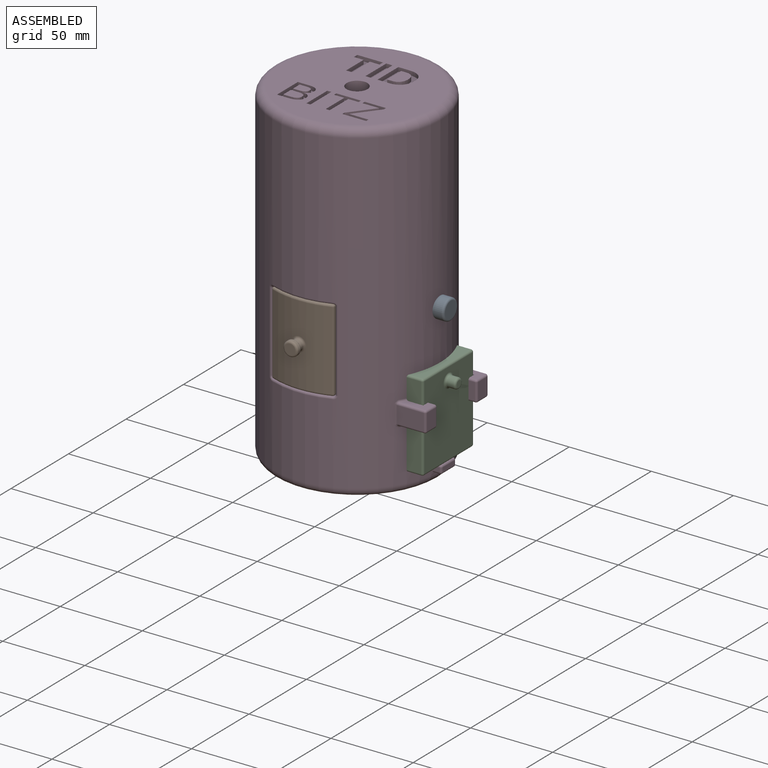
[diagram: assembled view]
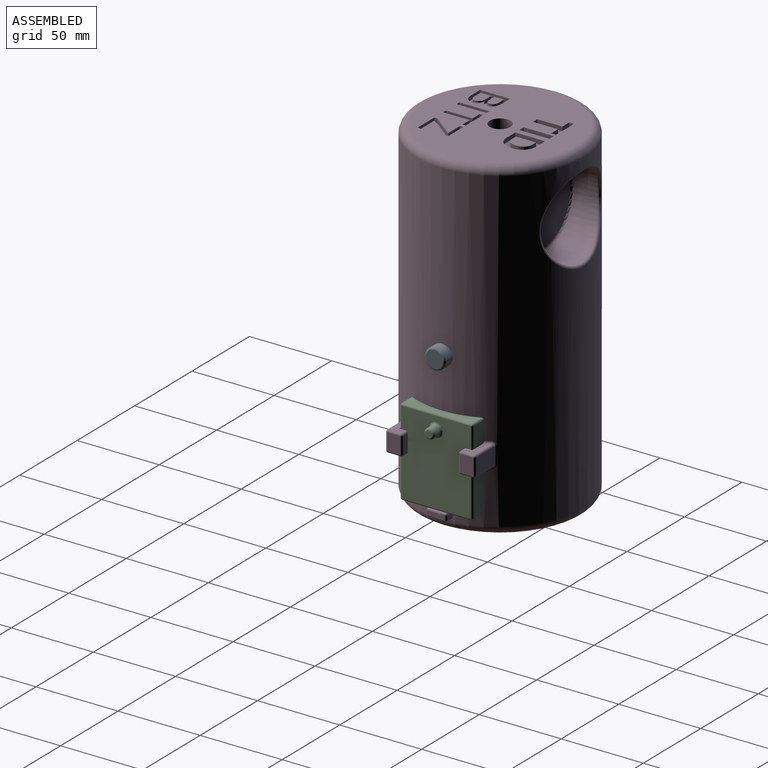
[diagram: assembled view, second angle]
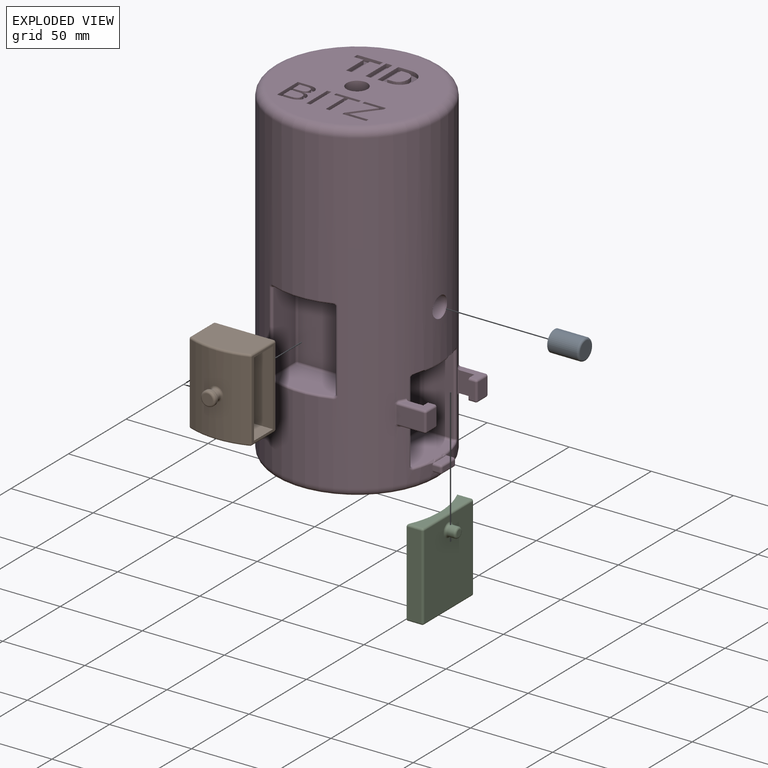
[diagram: exploded view]
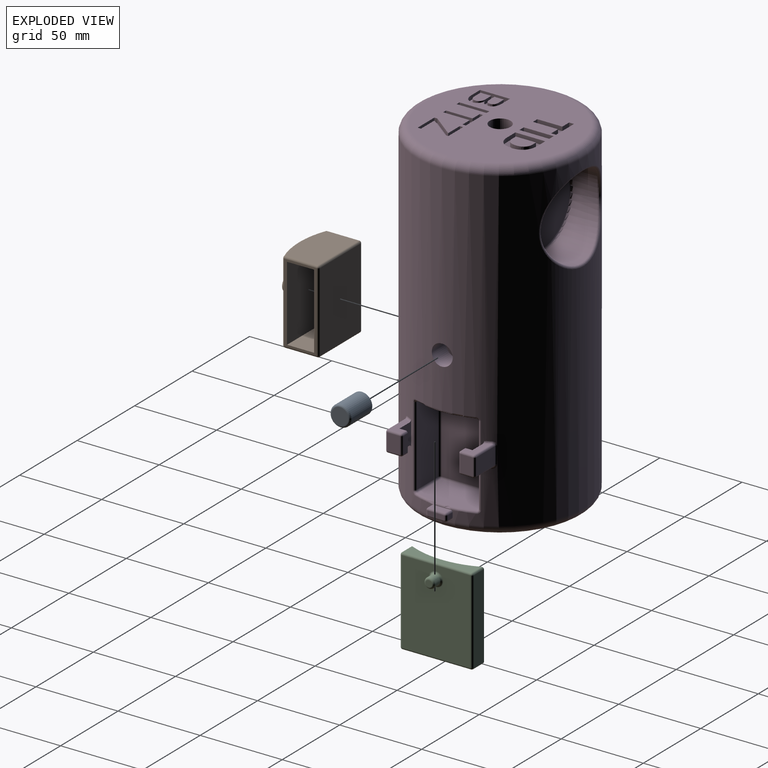
[diagram: exploded view, second angle]
ASSEMBLY  parts=4 mates=3
PART A: 4 faces, bbox 19.1x13.7x13.7 mm
  f0: cylinder r=6.35mm len=17.78mm, axis (-1,0,0), area 709.4mm2, adj f2,f3
  f1: plane 10.16x10.16mm, normal (1,0,0), area 81.1mm2, adj f3
  f2: plane 12.7x12.7mm, normal (-1,0,0), area 126.7mm2, adj f0
  f3: torus R=5.08mm, axis (1,0,0), area 73.8mm2, adj f0,f1
PART B: 37 faces, bbox 39.2x33x50.5 mm
  f0: plane 48.01x19.63mm, normal (1,0,0), area 187.6mm2, adj f18,f19,f27,f28,f32,f33,f34,f35
  f1: cylinder r=50.8mm len=48.01mm, axis (0,0,1), area 1716.8mm2, adj f11,f17,f26,f27,f31
  f2: plane 35.31x22.86mm, normal (0,0,1), area 769.3mm2, adj f12,f16,f17,f18
  f3: plane 35.31x22.86mm, normal (0,0,-1), area 769.3mm2, adj f20,f25,f28,f31
  f4: plane 48.01x19.58mm, normal (-1,0,0), area 940.1mm2, adj f15,f16,f25,f26
  f5: plane 48.01x35.31mm, normal (0,1,0), area 1694.9mm2, adj f12,f15,f19,f20
  f6: cylinder r=3.17mm len=6.35mm, axis (0,1,0), area 52.6mm2, adj f9,f11
  f7: cylinder r=4.45mm len=8.89mm, axis (0,1,0), area 35.5mm2, adj f9,f10
  f8: plane 6.35x6.35mm, normal (0,-1,0), area 31.7mm2, adj f10
  f9: torus R=3.17mm, axis (0,-1,0), area 49.9mm2, adj f6,f7
  f10: torus R=3.17mm, axis (0,-1,0), area 49.9mm2, adj f7,f8
  f11: bspline ~8.9x8.68mm, area 44.1mm2, adj f1,f6
  f12: cylinder r=1.27mm len=35.31mm, axis (-1,0,0), area 70.4mm2, adj f2,f5,f13,f14
  f13: sphere r=1.27mm, area 2.5mm2, adj f12,f15,f16
  f14: sphere r=1.27mm, area 2.5mm2, adj f12,f18,f19
  f15: cylinder r=1.27mm len=48.01mm, axis (0,0,-1), area 95.8mm2, adj f4,f5,f13,f21
  f16: cylinder r=1.27mm len=19.58mm, axis (0,-1,0), area 39.1mm2, adj f2,f4,f13,f22
  f17: torus R=49.53mm, axis (0,0,1), area 73.2mm2, adj f1,f2,f22,f23
  f18: cylinder r=1.27mm len=19.63mm, axis (0,1,0), area 39.2mm2, adj f0,f2,f14,f23
  f19: cylinder r=1.27mm len=48.01mm, axis (0,0,1), area 95.8mm2, adj f0,f5,f14,f24
  f20: cylinder r=1.27mm len=35.31mm, axis (1,0,0), area 70.4mm2, adj f3,f5,f21,f24
  f21: sphere r=1.27mm, area 2.5mm2, adj f15,f20,f25
  f22: sphere r=1.27mm, area 1.9mm2, adj f16,f17,f26
  f23: sphere r=1.27mm, area 1.9mm2, adj f17,f18,f27
  f24: sphere r=1.27mm, area 2.5mm2, adj f19,f20,f28
  f25: cylinder r=1.27mm len=19.58mm, axis (0,1,0), area 39.1mm2, adj f3,f4,f21,f29
  f26: cylinder r=1.27mm len=48.01mm, axis (0,0,1), area 73.5mm2, adj f1,f4,f22,f29
  f27: cylinder r=1.27mm len=48.01mm, axis (0,0,1), area 73.6mm2, adj f0,f1,f23,f30
  f28: cylinder r=1.27mm len=19.63mm, axis (0,-1,0), area 39.2mm2, adj f0,f3,f24,f30
  f29: sphere r=1.27mm, area 1.9mm2, adj f25,f26,f31
  f30: sphere r=1.27mm, area 1.9mm2, adj f27,f28,f31
  f31: torus R=49.53mm, axis (0,0,1), area 73.2mm2, adj f1,f3,f29,f30
  f32: plane 34.29x16.51mm, normal (0,0,-1), area 566.1mm2, adj f0,f33,f35,f36
  f33: plane 45.72x34.29mm, normal (0,1,0), area 1567.7mm2, adj f0,f32,f34,f36
  f34: plane 34.29x16.51mm, normal (0,0,1), area 566.1mm2, adj f0,f33,f35,f36
  f35: plane 45.72x34.29mm, normal (0,-1,0), area 1567.7mm2, adj f0,f32,f34,f36
  f36: plane 45.72x16.51mm, normal (1,0,0), area 754.8mm2, adj f32,f33,f34,f35
PART C: 22 faces, bbox 16.4x44.3x53.3 mm
  f0: plane 50.8x41.78mm, normal (1,0,0), area 2060.5mm2, adj f8,f12,f15,f18,f21
  f1: plane 50.8x8.76mm, normal (0,1,0), area 445.2mm2, adj f2,f16,f17,f21
  f2: cylinder r=50.8mm len=53.34mm, axis (0,0,-1), area 2444.9mm2, adj f1,f3,f4,f5,f10,f11,f16,f17
  f3: plane 50.8x8.76mm, normal (0,-1,0), area 445.2mm2, adj f2,f10,f11,f12
  f4: plane 41.78x8.17mm, normal (0,0,1), area 215mm2, adj f2,f10,f15,f16
  f5: plane 41.78x8.17mm, normal (0,0,-1), area 215mm2, adj f2,f11,f17,f18
  f6: cylinder r=3.17mm len=6.35mm, axis (-1,0,0), area 76mm2, adj f8,f9
  f7: plane 3.81x3.81mm, normal (1,0,0), area 11.4mm2, adj f9
  f8: torus R=4.45mm, axis (1,0,0), area 45.6mm2, adj f0,f6
  f9: torus R=1.91mm, axis (1,0,0), area 34mm2, adj f6,f7
  f10: cylinder r=1.27mm len=8.76mm, axis (-1,0,0), area 17mm2, adj f2,f3,f4,f13
  f11: cylinder r=1.27mm len=8.76mm, axis (1,0,0), area 17mm2, adj f2,f3,f5,f14
  f12: cylinder r=1.27mm len=50.8mm, axis (0,0,1), area 101.3mm2, adj f0,f3,f13,f14
  f13: sphere r=1.27mm, area 2.5mm2, adj f10,f12,f15
  f14: sphere r=1.27mm, area 2.5mm2, adj f11,f12,f18
  f15: cylinder r=1.27mm len=41.78mm, axis (0,-1,0), area 83.4mm2, adj f0,f4,f13,f19
  f16: cylinder r=1.27mm len=8.76mm, axis (1,0,0), area 17mm2, adj f1,f2,f4,f19
  f17: cylinder r=1.27mm len=8.76mm, axis (-1,0,0), area 17mm2, adj f1,f2,f5,f20
  f18: cylinder r=1.27mm len=41.78mm, axis (0,1,0), area 83.4mm2, adj f0,f5,f14,f20
  f19: sphere r=1.27mm, area 2.5mm2, adj f15,f16,f21
  f20: sphere r=1.27mm, area 2.5mm2, adj f17,f18,f21
  f21: cylinder r=1.27mm len=50.8mm, axis (0,0,-1), area 101.3mm2, adj f0,f1,f19,f20
PART D: 234 faces, bbox 115.9x110x203.2 mm
  f0: plane 91.44x91.44mm, normal (0,0,1), area 5566.2mm2, adj f3,f5,f152,f153,f154,f155,f156,f157
  f1: cylinder r=50.8mm len=193.04mm, axis (0,0,-1), area 51991.5mm2, adj f4,f5,f23,f24,f26,f29,f32,f43
  f2: plane 91.44x91.44mm, normal (0,0,-1), area 6440.3mm2, adj f3,f4
  f3: cylinder r=6.35mm len=203.2mm, axis (0,0,-1), area 8107.3mm2, adj f0,f2
  f4: torus R=45.72mm, axis (0,0,1), area 2454.4mm2, adj f1,f2
  f5: torus R=45.72mm, axis (0,0,1), area 2454.4mm2, adj f0,f1
  f6: plane 35.56x22.86mm, normal (0,0,-1), area 774.3mm2, adj f136,f137,f145,f146
  f7: plane 48.26x18.5mm, normal (0,1,0), area 892.8mm2, adj f130,f133,f137,f138
  f8: plane 35.56x22.86mm, normal (0,0,1), area 774.3mm2, adj f133,f134,f143,f144
  f9: plane 48.26x18.5mm, normal (0,-1,0), area 892.8mm2, adj f135,f144,f145,f149
  f10: plane 48.26x35.56mm, normal (1,0,0), area 1716.1mm2, adj f130,f134,f135,f136
  f11: plane 35.56x22.86mm, normal (0,0,-1), area 774.3mm2, adj f116,f117,f125,f126
  f12: plane 48.26x18.5mm, normal (1,0,0), area 892.8mm2, adj f110,f113,f117,f118
  f13: plane 35.56x22.86mm, normal (0,0,1), area 774.3mm2, adj f113,f114,f123,f124
  f14: plane 48.26x18.5mm, normal (-1,0,0), area 892.8mm2, adj f115,f124,f125,f129
  f15: plane 48.26x35.56mm, normal (0,-1,0), area 1716.1mm2, adj f110,f114,f115,f116
  f16: plane 48.26x18.5mm, normal (0,-1,0), area 892.8mm2, adj f98,f103,f106,f109
  f17: plane 35.56x22.86mm, normal (0,0,-1), area 774.3mm2, adj f96,f97,f105,f106
  f18: plane 48.26x18.5mm, normal (0,1,0), area 892.8mm2, adj f90,f94,f95,f96
  f19: plane 35.56x22.86mm, normal (0,0,1), area 774.3mm2, adj f93,f94,f103,f104
  f20: plane 48.26x35.56mm, normal (-1,0,0), area 1716.1mm2, adj f90,f93,f97,f98
  f21: cylinder r=25.4mm len=50.8mm, axis (0,1,0), area 3039.3mm2, adj f88,f89
  f22: plane 48.26x48.26mm, normal (0,1,0), area 1829.2mm2, adj f89
  f23: plane 4.21x2.54mm, normal (0,-1,0), area 10.7mm2, adj f1,f81,f85,f87
  f24: plane 4.21x2.54mm, normal (0,1,0), area 10.7mm2, adj f1,f76,f78,f79
  f25: plane 10.16x4.06mm, normal (0,0,1), area 39.6mm2, adj f78,f84,f87,f143
  f26: plane 10.16x4.06mm, normal (0,0,-1), area 39.6mm2, adj f1,f76,f80,f81
  f27: plane 10.16x2.54mm, normal (1,0,0), area 25.8mm2, adj f79,f80,f84,f85
  f28: plane 16.16x10.16mm, normal (0,-1,0), area 164.2mm2, adj f44,f53,f54,f58
  f29: plane 15.24x10.2mm, normal (0,1,0), area 130.3mm2, adj f1,f30,f31,f39,f43,f45
  f30: plane 14.6x7.62mm, normal (0,0,1), area 66.2mm2, adj f29,f39,f45,f46,f54,f55
  f31: plane 14.6x7.62mm, normal (0,0,-1), area 66.2mm2, adj f29,f39,f42,f43,f52,f53
  f32: plane 15.24x10.2mm, normal (0,-1,0), area 130.3mm2, adj f1,f34,f35,f36,f59,f63
  f33: plane 16.16x10.16mm, normal (0,1,0), area 164.2mm2, adj f64,f69,f72,f75
  f34: plane 14.6x7.62mm, normal (0,0,1), area 66.2mm2, adj f32,f36,f62,f63,f71,f72
  f35: plane 14.6x7.62mm, normal (0,0,-1), area 66.2mm2, adj f32,f36,f59,f60,f69,f70
  f36: plane 12.7x5.08mm, normal (-1,0,0), area 63.8mm2, adj f32,f34,f35,f38,f60,f62
  f37: plane 10.16x7.62mm, normal (1,0,0), area 77.4mm2, adj f61,f70,f71,f75
  f38: plane 10.16x3.81mm, normal (0,-1,0), area 38.7mm2, adj f36,f60,f61,f62
  f39: plane 12.7x5.08mm, normal (-1,0,0), area 63.8mm2, adj f29,f30,f31,f40,f42,f46
  f40: plane 10.16x3.81mm, normal (0,1,0), area 38.7mm2, adj f39,f42,f46,f47
  f41: plane 10.16x7.62mm, normal (1,0,0), area 77.4mm2, adj f47,f52,f55,f58
  f42: cylinder r=1.27mm len=3.81mm, axis (1,0,0), area 7.6mm2, adj f31,f39,f40,f48
  f43: torus R=52.07mm, axis (0,0,1), area 7.7mm2, adj f1,f29,f31,f49
  f44: cylinder r=1.27mm len=10.16mm, axis (0,0,-1), area 12.8mm2, adj f1,f28,f49,f50
  f45: torus R=52.07mm, axis (0,0,1), area 7.7mm2, adj f1,f29,f30,f50
  f46: cylinder r=1.27mm len=3.81mm, axis (-1,0,0), area 7.6mm2, adj f30,f39,f40,f51
  f47: cylinder r=1.27mm len=10.16mm, axis (0,0,1), area 20.3mm2, adj f40,f41,f48,f51
  f48: sphere r=1.27mm, area 2.5mm2, adj f42,f47,f52
  f49: bspline ~3.09x2.99mm, area 5.1mm2, adj f1,f43,f44,f53
  f50: bspline ~3.1x3.03mm, area 5.1mm2, adj f1,f44,f45,f54
  f51: sphere r=1.27mm, area 2.5mm2, adj f46,f47,f55
  f52: cylinder r=1.27mm len=7.62mm, axis (0,-1,0), area 15.2mm2, adj f31,f41,f48,f56
  f53: cylinder r=1.27mm len=16.16mm, axis (-1,0,0), area 31.1mm2, adj f28,f31,f49,f56
  f54: cylinder r=1.27mm len=16.16mm, axis (1,0,0), area 31.1mm2, adj f28,f30,f50,f57
  f55: cylinder r=1.27mm len=7.62mm, axis (0,1,0), area 15.2mm2, adj f30,f41,f51,f57
  f56: sphere r=1.27mm, area 2.5mm2, adj f52,f53,f58
  f57: sphere r=1.27mm, area 2.5mm2, adj f54,f55,f58
  f58: cylinder r=1.27mm len=10.16mm, axis (0,0,1), area 20.3mm2, adj f28,f41,f56,f57
  f59: torus R=52.07mm, axis (0,0,1), area 7.7mm2, adj f1,f32,f35,f65
  f60: cylinder r=1.27mm len=3.81mm, axis (-1,0,0), area 7.6mm2, adj f35,f36,f38,f66
  f61: cylinder r=1.27mm len=10.16mm, axis (0,0,1), area 20.3mm2, adj f37,f38,f66,f67
  f62: cylinder r=1.27mm len=3.81mm, axis (1,0,0), area 7.6mm2, adj f34,f36,f38,f67
  f63: torus R=52.07mm, axis (0,0,1), area 7.7mm2, adj f1,f32,f34,f68
  f64: cylinder r=1.27mm len=10.16mm, axis (0,0,-1), area 12.8mm2, adj f1,f33,f65,f68
  f65: bspline ~3.1x3.03mm, area 5.1mm2, adj f1,f59,f64,f69
  f66: sphere r=1.27mm, area 2.5mm2, adj f60,f61,f70
  f67: sphere r=1.27mm, area 2.5mm2, adj f61,f62,f71
  f68: bspline ~3.09x2.99mm, area 5.1mm2, adj f1,f63,f64,f72
  f69: cylinder r=1.27mm len=16.16mm, axis (1,0,0), area 31.1mm2, adj f33,f35,f65,f73
  f70: cylinder r=1.27mm len=7.62mm, axis (0,-1,0), area 15.2mm2, adj f35,f37,f66,f73
  f71: cylinder r=1.27mm len=7.62mm, axis (0,1,0), area 15.2mm2, adj f34,f37,f67,f74
  f72: cylinder r=1.27mm len=16.16mm, axis (-1,0,0), area 31.1mm2, adj f33,f34,f68,f74
  f73: sphere r=1.27mm, area 2.5mm2, adj f69,f70,f75
  f74: sphere r=1.27mm, area 2.5mm2, adj f71,f72,f75
  f75: cylinder r=1.27mm len=10.16mm, axis (0,0,-1), area 20.3mm2, adj f33,f37,f73,f74
  f76: cylinder r=1.27mm len=4.21mm, axis (1,0,0), area 8.3mm2, adj f1,f24,f26,f77
  f77: sphere r=1.27mm, area 2.5mm2, adj f76,f79,f80
  f78: cylinder r=1.27mm len=4.21mm, axis (-1,0,0), area 8.3mm2, adj f1,f24,f25,f82
  f79: cylinder r=1.27mm len=2.54mm, axis (0,0,-1), area 5.1mm2, adj f24,f27,f77,f82
  f80: cylinder r=1.27mm len=10.16mm, axis (0,-1,0), area 20.3mm2, adj f26,f27,f77,f83
  f81: cylinder r=1.27mm len=4.21mm, axis (-1,0,0), area 8.3mm2, adj f1,f23,f26,f83
  f82: sphere r=1.27mm, area 2.5mm2, adj f78,f79,f84
  f83: sphere r=1.27mm, area 2.5mm2, adj f80,f81,f85
  f84: cylinder r=1.27mm len=10.16mm, axis (0,1,0), area 20.3mm2, adj f25,f27,f82,f86
  f85: cylinder r=1.27mm len=2.54mm, axis (0,0,1), area 5.1mm2, adj f23,f27,f83,f86
  f86: sphere r=1.27mm, area 2.5mm2, adj f84,f85,f87
  f87: cylinder r=1.27mm len=4.21mm, axis (1,0,0), area 8.3mm2, adj f1,f23,f25,f86
  f88: bspline ~54.72x53.36mm, area 391.7mm2, adj f1,f21
  f89: torus R=24.13mm, axis (0,-1,0), area 312.6mm2, adj f21,f22
  f90: cylinder r=1.27mm len=48.26mm, axis (0,0,-1), area 96.3mm2, adj f18,f20,f91,f92
  f91: sphere r=1.27mm, area 2.5mm2, adj f90,f93,f94
  f92: sphere r=1.27mm, area 2.5mm2, adj f90,f96,f97
  f93: cylinder r=1.27mm len=35.56mm, axis (0,1,0), area 70.9mm2, adj f19,f20,f91,f99
  f94: cylinder r=1.27mm len=19.56mm, axis (-1,0,0), area 37.7mm2, adj f18,f19,f91,f100
  f95: cylinder r=1.27mm len=48.26mm, axis (0,0,-1), area 122.2mm2, adj f1,f18,f100,f101
  f96: cylinder r=1.27mm len=19.56mm, axis (1,0,0), area 37.7mm2, adj f17,f18,f92,f101
  f97: cylinder r=1.27mm len=35.56mm, axis (0,-1,0), area 70.9mm2, adj f17,f20,f92,f102
  f98: cylinder r=1.27mm len=48.26mm, axis (0,0,1), area 96.3mm2, adj f16,f20,f99,f102
  f99: sphere r=1.27mm, area 2.5mm2, adj f93,f98,f103
  f100: bspline ~3.21x2.68mm, area 6.5mm2, adj f1,f94,f95,f104
  f101: bspline ~3.37x2.73mm, area 6.5mm2, adj f1,f95,f96,f105
  f102: sphere r=1.27mm, area 2.5mm2, adj f97,f98,f106
  f103: cylinder r=1.27mm len=19.56mm, axis (1,0,0), area 37.7mm2, adj f16,f19,f99,f107
  f104: torus R=49.53mm, axis (0,0,-1), area 73.7mm2, adj f1,f19,f100,f107
  f105: torus R=49.53mm, axis (0,0,-1), area 73.7mm2, adj f1,f17,f101,f108
  f106: cylinder r=1.27mm len=19.56mm, axis (-1,0,0), area 37.7mm2, adj f16,f17,f102,f108
  f107: bspline ~3.37x2.73mm, area 6.5mm2, adj f1,f103,f104,f109
  f108: bspline ~3.21x2.68mm, area 6.5mm2, adj f1,f105,f106,f109
  f109: cylinder r=1.27mm len=48.26mm, axis (0,0,-1), area 122.2mm2, adj f1,f16,f107,f108
  f110: cylinder r=1.27mm len=48.26mm, axis (0,0,-1), area 96.3mm2, adj f12,f15,f111,f112
  f111: sphere r=1.27mm, area 2.5mm2, adj f110,f113,f114
  f112: sphere r=1.27mm, area 2.5mm2, adj f110,f116,f117
  f113: cylinder r=1.27mm len=19.56mm, axis (0,1,0), area 37.7mm2, adj f12,f13,f111,f119
  f114: cylinder r=1.27mm len=35.56mm, axis (1,0,0), area 70.9mm2, adj f13,f15,f111,f120
  f115: cylinder r=1.27mm len=48.26mm, axis (0,0,1), area 96.3mm2, adj f14,f15,f120,f121
  f116: cylinder r=1.27mm len=35.56mm, axis (-1,0,0), area 70.9mm2, adj f11,f15,f112,f121
  f117: cylinder r=1.27mm len=19.56mm, axis (0,-1,0), area 37.7mm2, adj f11,f12,f112,f122
  f118: cylinder r=1.27mm len=48.26mm, axis (0,0,-1), area 122.2mm2, adj f1,f12,f119,f122
  f119: bspline ~3.37x2.73mm, area 6.5mm2, adj f1,f113,f118,f123
  f120: sphere r=1.27mm, area 2.5mm2, adj f114,f115,f124
  f121: sphere r=1.27mm, area 2.5mm2, adj f115,f116,f125
  f122: bspline ~3.21x2.68mm, area 6.5mm2, adj f1,f117,f118,f126
  f123: torus R=49.53mm, axis (0,0,-1), area 73.7mm2, adj f1,f13,f119,f127
  f124: cylinder r=1.27mm len=19.56mm, axis (0,-1,0), area 37.7mm2, adj f13,f14,f120,f127
  f125: cylinder r=1.27mm len=19.56mm, axis (0,1,0), area 37.7mm2, adj f11,f14,f121,f128
  f126: torus R=49.53mm, axis (0,0,-1), area 73.7mm2, adj f1,f11,f122,f128
  f127: bspline ~3.21x2.68mm, area 6.5mm2, adj f1,f123,f124,f129
  f128: bspline ~3.37x2.73mm, area 6.5mm2, adj f1,f125,f126,f129
  f129: cylinder r=1.27mm len=48.26mm, axis (0,0,-1), area 122.2mm2, adj f1,f14,f127,f128
  f130: cylinder r=1.27mm len=48.26mm, axis (0,0,-1), area 96.3mm2, adj f7,f10,f131,f132
  f131: sphere r=1.27mm, area 2.5mm2, adj f130,f133,f134
  f132: sphere r=1.27mm, area 2.5mm2, adj f130,f136,f137
  f133: cylinder r=1.27mm len=19.56mm, axis (-1,0,0), area 37.7mm2, adj f7,f8,f131,f139
  f134: cylinder r=1.27mm len=35.56mm, axis (0,1,0), area 70.9mm2, adj f8,f10,f131,f140
  f135: cylinder r=1.27mm len=48.26mm, axis (0,0,1), area 96.3mm2, adj f9,f10,f140,f141
  f136: cylinder r=1.27mm len=35.56mm, axis (0,-1,0), area 70.9mm2, adj f6,f10,f132,f141
  f137: cylinder r=1.27mm len=19.56mm, axis (1,0,0), area 37.7mm2, adj f6,f7,f132,f142
  f138: cylinder r=1.27mm len=48.26mm, axis (0,0,-1), area 122.2mm2, adj f1,f7,f139,f142
  f139: bspline ~3.37x2.73mm, area 6.5mm2, adj f1,f133,f138,f143
  f140: sphere r=1.27mm, area 2.5mm2, adj f134,f135,f144
  f141: sphere r=1.27mm, area 2.5mm2, adj f135,f136,f145
  f142: bspline ~3.21x2.68mm, area 6.5mm2, adj f1,f137,f138,f146
  f143: torus R=49.53mm, axis (0,0,-1), area 73.7mm2, adj f1,f8,f25,f139,f147
  f144: cylinder r=1.27mm len=19.56mm, axis (1,0,0), area 37.7mm2, adj f8,f9,f140,f147
  f145: cylinder r=1.27mm len=19.56mm, axis (-1,0,0), area 37.7mm2, adj f6,f9,f141,f148
  f146: torus R=49.53mm, axis (0,0,-1), area 73.7mm2, adj f1,f6,f142,f148
  f147: bspline ~3.21x2.68mm, area 6.5mm2, adj f1,f143,f144,f149
  f148: bspline ~3.37x2.73mm, area 6.5mm2, adj f1,f145,f146,f149
  f149: cylinder r=1.27mm len=48.26mm, axis (0,0,-1), area 122.2mm2, adj f1,f9,f147,f148
  f150: cylinder r=6.35mm len=12.7mm, axis (1,0,0), area 498.8mm2, adj f1,f151
  f151: plane 12.7x12.7mm, normal (1,0,0), area 126.7mm2, adj f150
  f152: plane 15.26x2.54mm, normal (-1,0,0), area 38.8mm2, adj f0,f153,f159,f160
  f153: plane 5.89x2.54mm, normal (0,1,0), area 15mm2, adj f0,f152,f154,f160
  f154: plane 2.94x2.54mm, normal (-1,0,0), area 7.5mm2, adj f0,f153,f155,f160
  f155: plane 15.58x2.54mm, normal (0,-1,0), area 39.6mm2, adj f0,f154,f156,f160
  f156: plane 2.94x2.54mm, normal (1,0,0), area 7.5mm2, adj f0,f155,f157,f160
  f157: plane 5.88x2.54mm, normal (0,1,0), area 14.9mm2, adj f0,f156,f158,f160
  f158: plane 15.26x2.54mm, normal (1,0,0), area 38.8mm2, adj f0,f157,f159,f160
  f159: plane 3.81x2.54mm, normal (0,1,0), area 9.7mm2, adj f0,f152,f158,f160
  f160: plane 18.2x15.58mm, normal (0,0,1), area 104mm2, adj f152,f153,f154,f155,f156,f157,f158,f159
  f161: extruded ~4.52x3.22mm, area 16mm2, adj f162,f183,f184,f232
  f162: extruded ~2.54x2.51mm, area 7.1mm2, adj f161,f163,f184,f232
  f163: extruded ~3.3x2.54mm, area 8.8mm2, adj f162,f164,f184,f232
  f164: plane 4.79x2.54mm, normal (0,-1,0), area 12.2mm2, adj f163,f165,f184,f232
  f165: plane 6.57x2.54mm, normal (-1,0,0), area 16.7mm2, adj f164,f183,f184,f232
  f166: extruded ~2.54x2.1mm, area 6.2mm2, adj f167,f181,f184,f185
  f167: extruded ~2.54x2.28mm, area 6.5mm2, adj f166,f168,f184,f185
  f168: extruded ~2.95x2.54mm, area 7.9mm2, adj f167,f169,f184,f185
  f169: plane 4.15x2.54mm, normal (0,-1,0), area 10.5mm2, adj f168,f170,f184,f185
  f170: plane 5.76x2.54mm, normal (-1,0,0), area 14.6mm2, adj f169,f171,f184,f185
  f171: plane 4.15x2.54mm, normal (0,1,0), area 10.5mm2, adj f170,f181,f184,f185
  f172: extruded ~3.78x2.54mm, area 11mm2, adj f0,f173,f182,f184
  f173: extruded ~3.01x2.54mm, area 8.4mm2, adj f0,f172,f174,f184
  f174: extruded ~3.34x2.54mm, area 9.4mm2, adj f0,f173,f175,f184
  f175: extruded ~2.56x2.54mm, area 7.6mm2, adj f0,f174,f176,f184
  f176: extruded ~2.71x2.54mm, area 7.4mm2, adj f0,f175,f177,f184
  f177: extruded ~6.41x4.42mm, area 22.5mm2, adj f0,f176,f178,f184
  f178: plane 6.61x2.54mm, normal (0,-1,0), area 16.8mm2, adj f0,f177,f179,f184
  f179: plane 18.2x2.54mm, normal (1,0,0), area 46.2mm2, adj f0,f178,f180,f184
  f180: plane 7.39x2.54mm, normal (0,1,0), area 18.8mm2, adj f0,f179,f182,f184
  f181: extruded ~2.92x2.54mm, area 7.7mm2, adj f166,f171,f184,f185
  f182: extruded ~4.92x2.54mm, area 13.2mm2, adj f0,f172,f180,f184
  f183: plane 4.6x2.54mm, normal (0,1,0), area 11.7mm2, adj f161,f165,f184,f232
  f184: plane 18.2x14.08mm, normal (0,0,1), area 130.4mm2, adj f161,f162,f163,f164,f165,f166,f167,f168
  f185: plane 8.07x5.76mm, normal (0,0,1), area 42.9mm2, adj f166,f167,f168,f169,f170,f171,f181
  f186: extruded ~4.48x2.54mm, area 12.3mm2, adj f187,f200,f201,f233
  f187: extruded ~4.6x2.54mm, area 12.5mm2, adj f186,f188,f201,f233
  f188: extruded ~3.9x2.54mm, area 11.2mm2, adj f187,f189,f201,f233
  f189: plane 3.23x2.54mm, normal (0,-1,0), area 8.2mm2, adj f188,f190,f201,f233
  f190: plane 12.31x2.54mm, normal (-1,0,0), area 31.3mm2, adj f189,f191,f201,f233
  f191: plane 2.7x2.54mm, normal (0,1,0), area 6.9mm2, adj f190,f200,f201,f233
  f192: extruded ~4.91x2.54mm, area 12.9mm2, adj f0,f193,f199,f201
  f193: extruded ~6.65x2.54mm, area 18.6mm2, adj f0,f192,f194,f201
  f194: extruded ~7.12x2.54mm, area 19.5mm2, adj f0,f193,f195,f201
  f195: plane 6.59x2.54mm, normal (0,-1,0), area 16.7mm2, adj f0,f194,f196,f201
  f196: plane 18.2x2.54mm, normal (1,0,0), area 46.2mm2, adj f0,f195,f197,f201
  f197: plane 7.36x2.54mm, normal (0,1,0), area 18.7mm2, adj f0,f196,f198,f201
  f198: extruded ~4.63x2.54mm, area 12.2mm2, adj f0,f197,f199,f201
  f199: extruded ~3.21x3.13mm, area 11.5mm2, adj f0,f192,f198,f201
  f200: extruded ~4.36x2.54mm, area 12.1mm2, adj f186,f191,f201,f233
  f201: plane 18.2x16.23mm, normal (0,0,1), area 171.4mm2, adj f186,f187,f188,f189,f190,f191,f192,f193
  f202: plane 18.2x2.54mm, normal (1,0,0), area 46.2mm2, adj f0,f203,f205,f206
  f203: plane 3.81x2.54mm, normal (0,1,0), area 9.7mm2, adj f0,f202,f204,f206
  f204: plane 18.2x2.54mm, normal (-1,0,0), area 46.2mm2, adj f0,f203,f205,f206
  f205: plane 3.81x2.54mm, normal (0,-1,0), area 9.7mm2, adj f0,f202,f204,f206
  f206: plane 18.2x3.81mm, normal (0,0,1), area 69.4mm2, adj f202,f203,f204,f205
  f207: plane 18.2x2.54mm, normal (1,0,0), area 46.2mm2, adj f0,f208,f210,f211
  f208: plane 2.54x2.47mm, normal (0,1,0), area 6.3mm2, adj f0,f207,f209,f211
  f209: plane 18.2x2.54mm, normal (-1,0,0), area 46.2mm2, adj f0,f208,f210,f211
  f210: plane 2.54x2.47mm, normal (0,-1,0), area 6.3mm2, adj f0,f207,f209,f211
  f211: plane 18.2x2.47mm, normal (0,0,1), area 44.9mm2, adj f207,f208,f209,f210
  f212: plane 16.19x2.54mm, normal (-1,0,0), area 41.1mm2, adj f0,f213,f219,f220
  f213: plane 6.26x2.54mm, normal (0,1,0), area 15.9mm2, adj f0,f212,f214,f220
  f214: plane 2.54x2.01mm, normal (-1,0,0), area 5.1mm2, adj f0,f213,f215,f220
  f215: plane 14.96x2.54mm, normal (0,-1,0), area 38mm2, adj f0,f214,f216,f220
  f216: plane 2.54x2.01mm, normal (1,0,0), area 5.1mm2, adj f0,f215,f217,f220
  f217: plane 6.25x2.54mm, normal (0,1,0), area 15.9mm2, adj f0,f216,f218,f220
  f218: plane 16.19x2.54mm, normal (1,0,0), area 41.1mm2, adj f0,f217,f219,f220
  f219: plane 2.54x2.46mm, normal (0,1,0), area 6.2mm2, adj f0,f212,f218,f220
  f220: plane 18.2x14.96mm, normal (0,0,1), area 69.9mm2, adj f212,f213,f214,f215,f216,f217,f218,f219
  f221: plane 14.49x2.54mm, normal (0,1,0), area 36.8mm2, adj f0,f222,f230,f231
  f222: plane 2.54x2.02mm, normal (-1,0,0), area 5.1mm2, adj f0,f221,f223,f231
  f223: plane 11.69x2.54mm, normal (0,-1,0), area 29.7mm2, adj f0,f222,f224,f231
  f224: plane 14.39x11.09mm, normal (-0.79,0.61,0), area 46.1mm2, adj f0,f223,f225,f231
  f225: plane 2.54x1.79mm, normal (-1,0,0), area 4.6mm2, adj f0,f224,f226,f231
  f226: plane 12.95x2.54mm, normal (0,-1,0), area 32.9mm2, adj f0,f225,f227,f231
  f227: plane 2.54x2.01mm, normal (1,0,0), area 5.1mm2, adj f0,f226,f228,f231
  f228: plane 10.14x2.54mm, normal (0,1,0), area 25.8mm2, adj f0,f227,f229,f231
  f229: plane 14.34x11.08mm, normal (0.79,-0.61,0), area 46mm2, adj f0,f228,f230,f231
  f230: plane 2.54x1.85mm, normal (1,0,0), area 4.7mm2, adj f0,f221,f229,f231
  f231: plane 18.2x14.49mm, normal (0,0,1), area 92.9mm2, adj f221,f222,f223,f224,f225,f226,f227,f228
  f232: plane 9.12x6.57mm, normal (0,0,1), area 55.1mm2, adj f161,f162,f163,f164,f165,f183
  f233: plane 12.31x8.58mm, normal (0,0,1), area 93.1mm2, adj f186,f187,f188,f189,f190,f191,f200
PLACE A rot(axis=(0.07,0,-1),0deg) t=(-1.26,0.23,98.56)mm
PLACE B rot(axis=(0.07,0,-1),0deg) t=(-39.29,-25.17,83.81)mm
PLACE C rot(axis=(0.07,0,-1),0deg) t=(16.39,0.23,14.74)mm
PLACE D rot(axis=(0.07,0,-1),0deg) t=(-39.36,0.23,3.31)mm fixed
MATE slider D.f15 <-> B.f5  axis (0,-1,0) through (-39.36,-25.17,83.75)mm
MATE slider D.f1 <-> C.f2  axis (0,0,-1) through (-39.36,0.23,104.91)mm
MATE pin_slot A.f0 <-> D.f150  axis (-1,0,0) through (-1.26,0.23,98.56)mm
